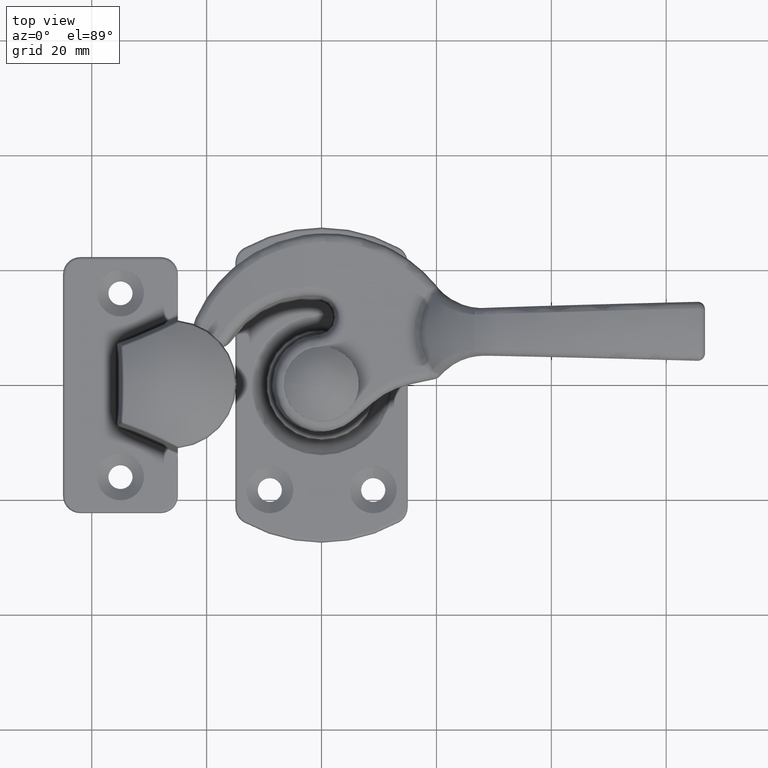
[diagram: clean part render]
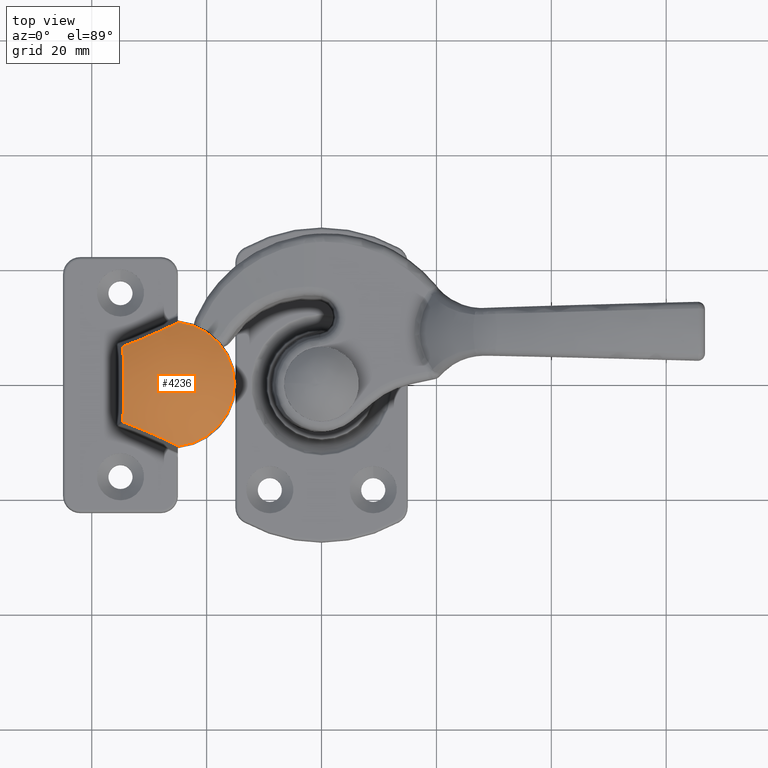
[diagram: same view with one face highlighted and labeled with its STEP entity id]
A machine part, top view. The second image highlights one B-rep face of the part: STEP entity #4236.
In plain terms, the highlighted spherical surface has radius 19.035 mm.
Its self-contained STEP definition (entity closure, byte-faithful):
#62=SPHERICAL_SURFACE('',#4681,19.035);
#1143=FACE_OUTER_BOUND('',#1457,.T.);
#1457=EDGE_LOOP('',(#3531,#3532,#3533,#3534,#3535));
#1724=CIRCLE('',#4627,15.0565527413765);
#1744=CIRCLE('',#4676,15.0565526957862);
#1747=CIRCLE('',#4682,15.6471031575765);
#1748=CIRCLE('',#4683,15.6471031856908);
#1749=CIRCLE('',#4684,10.8251787125911);
#2048=VERTEX_POINT('',#7468);
#2049=VERTEX_POINT('',#7470);
#2076=VERTEX_POINT('',#8059);
#2077=VERTEX_POINT('',#8068);
#2078=VERTEX_POINT('',#8111);
#2526=EDGE_CURVE('',#2048,#2049,#1724,.T.);
#2583=EDGE_CURVE('',#2076,#2077,#1744,.T.);
#2586=EDGE_CURVE('',#2048,#2078,#1747,.T.);
#2587=EDGE_CURVE('',#2078,#2077,#1748,.T.);
#2588=EDGE_CURVE('',#2076,#2049,#1749,.T.);
#3531=ORIENTED_EDGE('',*,*,#2526,.F.);
#3532=ORIENTED_EDGE('',*,*,#2586,.T.);
#3533=ORIENTED_EDGE('',*,*,#2587,.T.);
#3534=ORIENTED_EDGE('',*,*,#2583,.F.);
#3535=ORIENTED_EDGE('',*,*,#2588,.T.);
#4236=ADVANCED_FACE('',(#1143),#62,.T.);
#4627=AXIS2_PLACEMENT_3D('',#7471,#5524,#5525);
#4676=AXIS2_PLACEMENT_3D('',#8069,#5633,#5634);
#4681=AXIS2_PLACEMENT_3D('',#8110,#5643,#5644);
#4682=AXIS2_PLACEMENT_3D('',#8112,#5645,#5646);
#4683=AXIS2_PLACEMENT_3D('',#8113,#5647,#5648);
#4684=AXIS2_PLACEMENT_3D('',#8114,#5649,#5650);
#5524=DIRECTION('center_axis',(0.394346449309544,0.147809411388742,0.906996833413364));
#5525=DIRECTION('ref_axis',(0.917070056253462,-2.08166817117217E-17,-0.398726111413928));
#5633=DIRECTION('center_axis',(0.394346449314199,0.147809411277709,-0.906996833429434));
#5634=DIRECTION('ref_axis',(-0.917070056254324,4.16333634234434E-17,-0.398726111411945));
#5643=DIRECTION('center_axis',(1.,-2.62690469151521E-15,-8.59667706888533E-16));
#5644=DIRECTION('ref_axis',(2.68813703147258E-15,1.,-2.30006725714558E-30));
#5645=DIRECTION('center_axis',(-0.989015863303399,-0.147809411521165,-1.4667447389175E-10));
#5646=DIRECTION('ref_axis',(1.48303720444415E-10,-1.74694349186767E-15,
-1.));
#5647=DIRECTION('center_axis',(-0.989015863215106,-0.147809412111946,2.70338249630141E-10));
#5648=DIRECTION('ref_axis',(-2.73340661808551E-10,6.49641459261829E-18,
-1.));
#5649=DIRECTION('center_axis',(1.69933296725351E-11,1.,-4.6928806754208E-12));
#5650=DIRECTION('ref_axis',(-2.55832558763841E-27,-4.6928806754208E-12,
-1.));
#7468=CARTESIAN_POINT('',(8.61960119157318,15.6606471949344,6.54047626220322));
#7470=CARTESIAN_POINT('',(-1.10407308910164,15.657162285711,10.7687286523975));
#7471=CARTESIAN_POINT('Origin',(4.59259480418206,1.72140188547669,10.5629680512285));
#8059=CARTESIAN_POINT('',(-1.10407308782269,15.6571622850592,-10.7687286523954));
#8068=CARTESIAN_POINT('',(8.6196011918078,15.6606471941556,-6.54047626257496));
#8069=CARTESIAN_POINT('Origin',(4.59259480058063,1.72140193175817,-10.5629680429675));
#8110=CARTESIAN_POINT('Origin',(5.55111512312578E-16,1.77635683940025E-14,
3.33066907387547E-15));
#8111=CARTESIAN_POINT('',(8.40785934828238,17.0774449539739,-1.92477098885578E-10));
#8112=CARTESIAN_POINT('Origin',(10.7206484571836,1.60221171629769,1.65893199988856E-8));
#8113=CARTESIAN_POINT('Origin',(10.720648471387,1.60221168988024,-1.06973815961571E-8));
#8114=CARTESIAN_POINT('Origin',(4.97373297059419E-10,15.6571622857035,-3.02685844518777E-11));